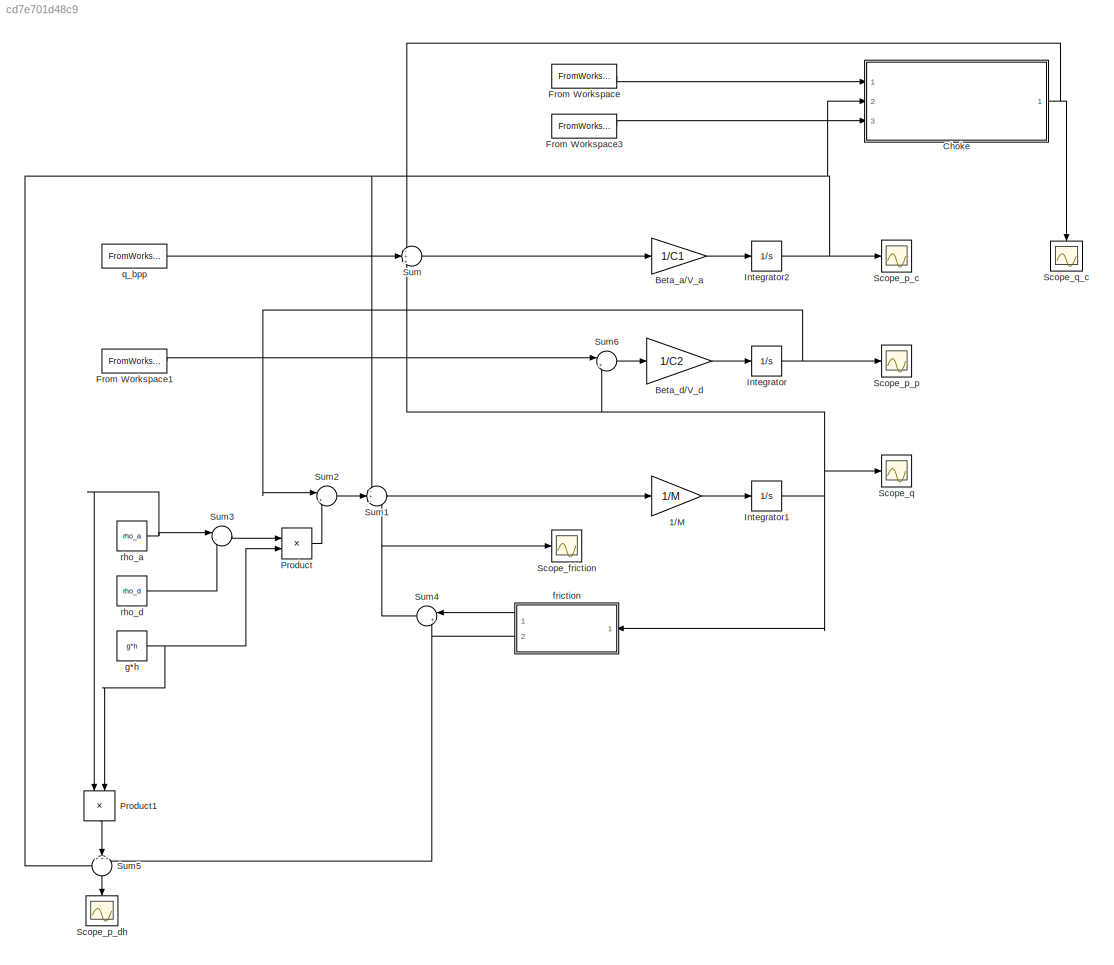
MODEL slx_cd7e701d48c9
KIND model
CONFIG AbsTol = auto
CONFIG FixedStep = auto
CONFIG MaxStep = auto
CONFIG MinStep = auto
CONFIG RelTol = 1e-3
CONFIG SampleTimeConstraint = Unconstrained
CONFIG Solver = ode45
CONFIG SolverMode = Auto
CONFIG SolverName = ode45
CONFIG StartTime = 0.0
CONFIG StopTime = time
BLOCK [Gain] 1//M 
  Gain = 1/M
  OutDataTypeStr = Inherit: Inherit via internal rule
  ParamDataTypeStr = Inherit: Inherit via internal rule
  SaturateOnIntegerOverflow = off
BLOCK [Gain] Beta_a//V_a 
  Gain = 1/C1
  OutDataTypeStr = Inherit: Inherit via internal rule
  ParamDataTypeStr = Inherit: Inherit via internal rule
  SaturateOnIntegerOverflow = off
BLOCK [Gain] Beta_d//V_d
  Gain = 1/C2
  OutDataTypeStr = Inherit: Inherit via internal rule
  ParamDataTypeStr = Inherit: Inherit via internal rule
  SaturateOnIntegerOverflow = off
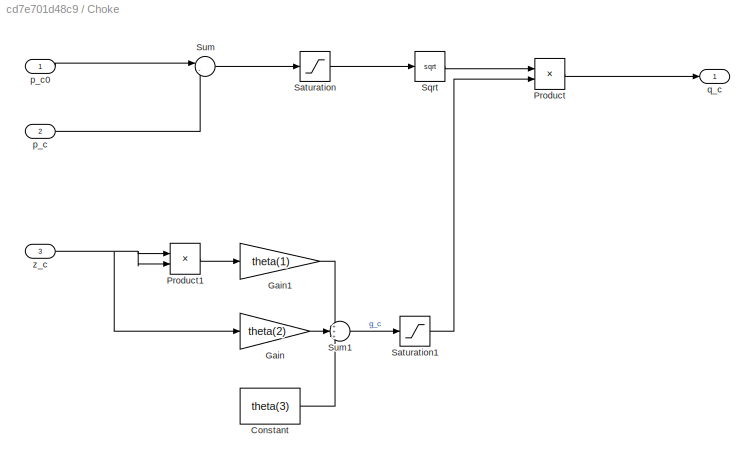
BLOCK [SubSystem] Choke 
  Ports = [3, 1]
  RequestExecContextInheritance = off
BLOCK [Constant] Choke /Constant
  Value = theta(3)
BLOCK [Gain] Choke /Gain
  Gain = theta(2)
  OutDataTypeStr = Inherit: Inherit via internal rule
  ParamDataTypeStr = Inherit: Inherit via internal rule
  SaturateOnIntegerOverflow = off
BLOCK [Gain] Choke /Gain1
  Gain = theta(1)
  OutDataTypeStr = Inherit: Inherit via internal rule
  ParamDataTypeStr = Inherit: Inherit via internal rule
  SaturateOnIntegerOverflow = off
BLOCK [Product] Choke /Product
  InputSameDT = off
  OutDataTypeStr = Inherit: Inherit via internal rule
  Ports = [2, 1]
  RndMeth = Floor
  SaturateOnIntegerOverflow = off
BLOCK [Product] Choke /Product1
  InputSameDT = off
  OutDataTypeStr = Inherit: Inherit via internal rule
  Ports = [2, 1]
  RndMeth = Floor
  SaturateOnIntegerOverflow = off
BLOCK [Saturate] Choke /Saturation
  InputPortMap = u0
  LowerLimit = 0
  Ports = [1, 1]
  UpperLimit = 6000
BLOCK [Saturate] Choke /Saturation1
  InputPortMap = u0
  LowerLimit = 0
  Ports = [1, 1]
  UpperLimit = 120
BLOCK [Sqrt] Choke /Sqrt
BLOCK [Sum] Choke /Sum
  IconShape = round
  InputSameDT = off
  Inputs = |-+
  OutDataTypeStr = Inherit: Inherit via internal rule
  Ports = [2, 1]
  SaturateOnIntegerOverflow = off
BLOCK [Sum] Choke /Sum1
  IconShape = round
  InputSameDT = off
  Inputs = +++
  OutDataTypeStr = Inherit: Inherit via internal rule
  Ports = [3, 1]
  SaturateOnIntegerOverflow = off
BLOCK [Inport] Choke /p_c 
  IconDisplay = Port number
  Port = 2
BLOCK [Inport] Choke /p_c0
  IconDisplay = Port number
BLOCK [Outport] Choke /q_c
  IconDisplay = Port number
BLOCK [Inport] Choke /z_c
  IconDisplay = Port number
  Port = 3
BLOCK [FromWorkspace] From Workspace
  SampleTime = 0
  VariableName = [t p_c_ds]
  ZeroCross = on
BLOCK [FromWorkspace] From Workspace1
  SampleTime = 0
  VariableName = [t q_p]
  ZeroCross = on
BLOCK [FromWorkspace] From Workspace3
  SampleTime = 0
  VariableName = [t z_c]
  ZeroCross = on
BLOCK [Integrator] Integrator
  InitialCondition = LOG.p_p(1)
  Ports = [1, 1]
BLOCK [Integrator] Integrator1
  InitialCondition = LOG.q_c(1)
  Ports = [1, 1]
BLOCK [Integrator] Integrator2
  InitialCondition = LOG.p_c(1)
  Ports = [1, 1]
BLOCK [Product] Product
  InputSameDT = off
  OutDataTypeStr = Inherit: Inherit via internal rule
  Ports = [2, 1]
  RndMeth = Floor
  SaturateOnIntegerOverflow = off
BLOCK [Product] Product1
  InputSameDT = off
  OutDataTypeStr = Inherit: Inherit via internal rule
  Ports = [2, 1]
  RndMeth = Floor
  SaturateOnIntegerOverflow = off
BLOCK [Scope] Scope_friction
  Floating = off
  NumInputPorts = 1
  Ports = [1]
  SaveName = ScopeData4
  YMax = 2.25e-08
  YMin = -2.5e-09
BLOCK [Scope] Scope_p_c
  DataFormat = StructureWithTime
  Floating = off
  NumInputPorts = 1
  Ports = [1]
  SaveName = p_c_out
  SaveToWorkspace = on
  YMax = 5.4
  YMin = 5.225
BLOCK [Scope] Scope_p_dh
  Floating = off
  NumInputPorts = 1
  Ports = [1]
  SaveName = ScopeData5
BLOCK [Scope] Scope_p_p
  DataFormat = StructureWithTime
  Floating = off
  NumInputPorts = 1
  Ports = [1]
  SaveName = p_p_out
  SaveToWorkspace = on
  YMax = 14
  YMin = 3
BLOCK [Scope] Scope_q
  DataFormat = StructureWithTime
  Floating = off
  NumInputPorts = 1
  Ports = [1]
  SaveName = q_out
  SaveToWorkspace = on
  YMax = 4.5e-07
  YMin = -1e-07
BLOCK [Scope] Scope_q_c
  DataFormat = StructureWithTime
  Floating = off
  NumInputPorts = 1
  Ports = [1]
  SaveName = q_c_out
  SaveToWorkspace = on
  YMax = 40
  YMin = 0
BLOCK [Sum] Sum
  IconShape = round
  InputSameDT = off
  Inputs = -++
  OutDataTypeStr = Inherit: Inherit via internal rule
  Ports = [3, 1]
  SaturateOnIntegerOverflow = off
BLOCK [Sum] Sum1
  IconShape = round
  InputSameDT = off
  Inputs = -+-
  OutDataTypeStr = Inherit: Inherit via internal rule
  Ports = [3, 1]
  SaturateOnIntegerOverflow = off
BLOCK [Sum] Sum2
  IconShape = round
  InputSameDT = off
  Inputs = |++
  OutDataTypeStr = Inherit: Inherit via internal rule
  Ports = [2, 1]
  SaturateOnIntegerOverflow = off
BLOCK [Sum] Sum3
  IconShape = round
  InputSameDT = off
  Inputs = |-+
  OutDataTypeStr = Inherit: Inherit via internal rule
  Ports = [2, 1]
  SaturateOnIntegerOverflow = off
BLOCK [Sum] Sum4
  IconShape = round
  InputSameDT = off
  Inputs = |++
  OutDataTypeStr = Inherit: Inherit via internal rule
  Ports = [2, 1]
  SaturateOnIntegerOverflow = off
BLOCK [Sum] Sum5
  IconShape = round
  InputSameDT = off
  Inputs = +++
  OutDataTypeStr = Inherit: Inherit via internal rule
  Ports = [3, 1]
  SaturateOnIntegerOverflow = off
BLOCK [Sum] Sum6
  IconShape = round
  InputSameDT = off
  Inputs = |+-
  OutDataTypeStr = Inherit: Inherit via internal rule
  Ports = [2, 1]
  SaturateOnIntegerOverflow = off
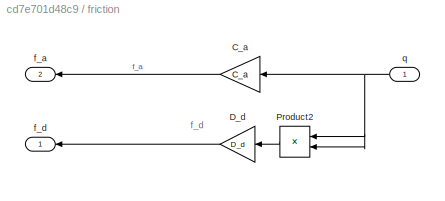
BLOCK [SubSystem] friction
  Ports = [1, 2]
  RequestExecContextInheritance = off
BLOCK [Gain] friction/C_a
  Gain = C_a
  OutDataTypeStr = Inherit: Inherit via internal rule
  ParamDataTypeStr = Inherit: Inherit via internal rule
  SaturateOnIntegerOverflow = off
BLOCK [Gain] friction/D_d
  Gain = D_d
  OutDataTypeStr = Inherit: Inherit via internal rule
  ParamDataTypeStr = Inherit: Inherit via internal rule
  SaturateOnIntegerOverflow = off
BLOCK [Product] friction/Product2
  InputSameDT = off
  OutDataTypeStr = Inherit: Inherit via internal rule
  Ports = [2, 1]
  RndMeth = Floor
  SaturateOnIntegerOverflow = off
BLOCK [Outport] friction/f_a
  IconDisplay = Port number
  Port = 2
BLOCK [Outport] friction/f_d
  IconDisplay = Port number
BLOCK [Inport] friction/q
  IconDisplay = Port number
BLOCK [Constant] g*h
  Value = g*h
BLOCK [FromWorkspace] q_bpp
  SampleTime = 0
  VariableName = [t q_bpp]
  ZeroCross = on
BLOCK [Constant] rho_a
  Value = rho_a
BLOCK [Constant] rho_d
  Value = rho_d
ANNOTATION friction: f_d
LINE 1//M :1 -> Integrator1:1
LINE Beta_a//V_a :1 -> Integrator2:1
LINE Beta_d//V_d:1 -> Integrator:1
LINE Choke /Constant:1 -> Choke /Sum1:3
LINE Choke /Gain1:1 -> Choke /Sum1:1
LINE Choke /Gain:1 -> Choke /Sum1:2
LINE Choke /Product1:1 -> Choke /Gain1:1
LINE Choke /Product:1 -> Choke /q_c:1
LINE Choke /Saturation1:1 -> Choke /Product:2
LINE Choke /Saturation:1 -> Choke /Sqrt:1
LINE Choke /Sqrt:1 -> Choke /Product:1
LINE Choke /Sum1:1 -> Choke /Saturation1:1
LINE Choke /Sum:1 -> Choke /Saturation:1
LINE Choke /p_c :1 -> Choke /Sum:2
LINE Choke /p_c0:1 -> Choke /Sum:1
NET Choke /z_c:1 -> Choke /Gain:1, Choke /Product1:1, Choke /Product1:2
NET Choke :1 -> Scope_q_c:1, Sum:1
LINE From Workspace1:1 -> Sum6:1
LINE From Workspace3:1 -> Choke :3
LINE From Workspace:1 -> Choke :1
NET Integrator1:1 -> Scope_q:1, Sum6:2, Sum:3, friction:1
NET Integrator2:1 -> Choke :2, Scope_p_c:1, Sum1:1, Sum5:1
NET Integrator:1 -> Scope_p_p:1, Sum2:1
LINE Product1:1 -> Sum5:2
LINE Product:1 -> Sum2:2
LINE Sum1:1 -> 1//M :1
LINE Sum2:1 -> Sum1:2
LINE Sum3:1 -> Product:1
NET Sum4:1 -> Scope_friction:1, Sum1:3
LINE Sum5:1 -> Scope_p_dh:1
LINE Sum6:1 -> Beta_d//V_d:1
LINE Sum:1 -> Beta_a//V_a :1
LINE friction/C_a:1 -> friction/f_a:1
LINE friction/D_d:1 -> friction/f_d:1
LINE friction/Product2:1 -> friction/D_d:1
NET friction/q:1 -> friction/C_a:1, friction/Product2:1, friction/Product2:2
LINE friction:1 -> Sum4:1
NET friction:2 -> Sum4:2, Sum5:3
NET g*h:1 -> Product1:2, Product:2
LINE q_bpp:1 -> Sum:2
NET rho_a:1 -> Product1:1, Sum3:1
LINE rho_d:1 -> Sum3:2
note: NET lines group one-source signal fan-out (src -> all destinations, sorted); 1:1 wires keep LINE
